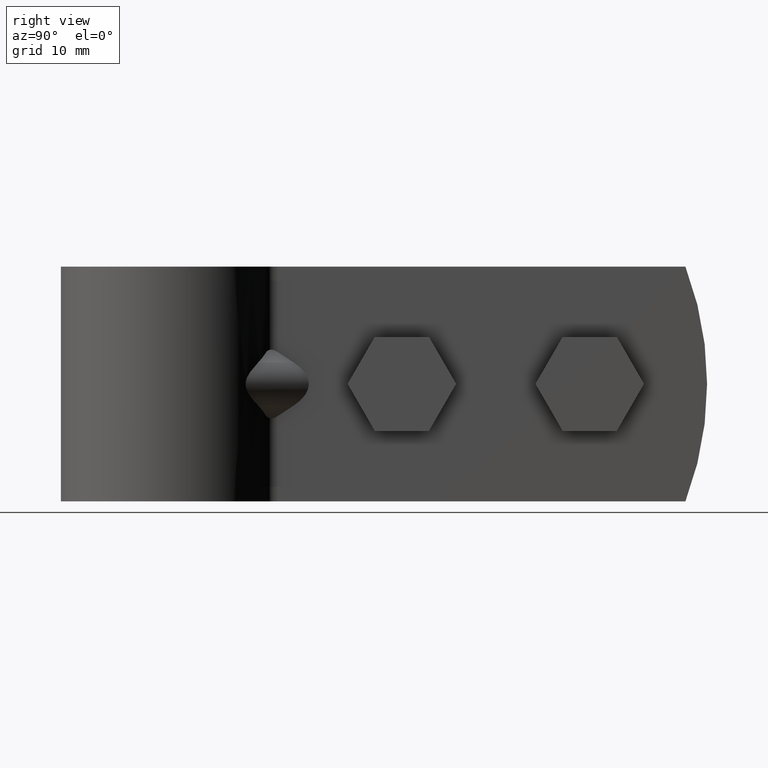
[diagram: clean part render]
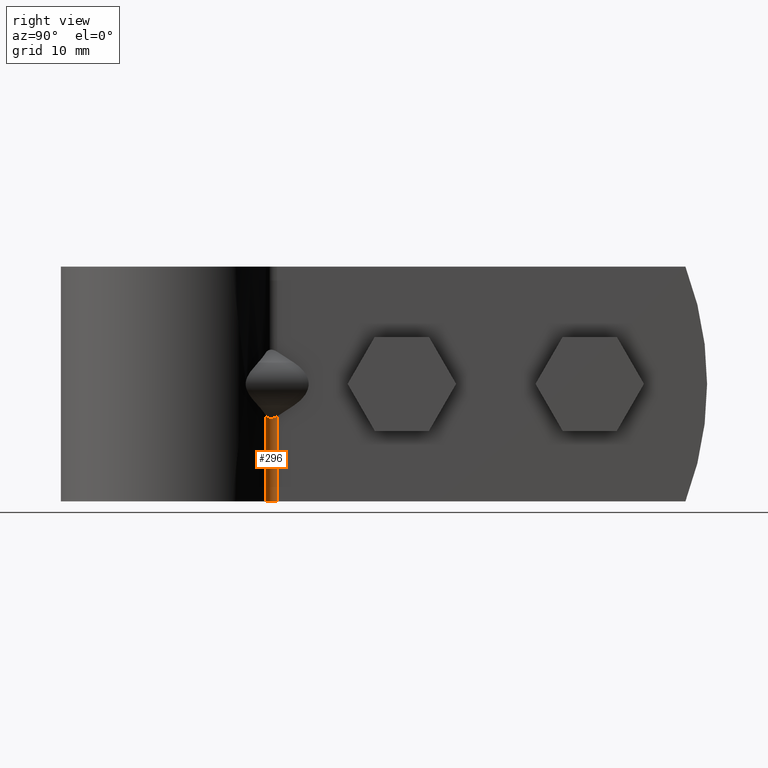
[diagram: same view with one face highlighted and labeled with its STEP entity id]
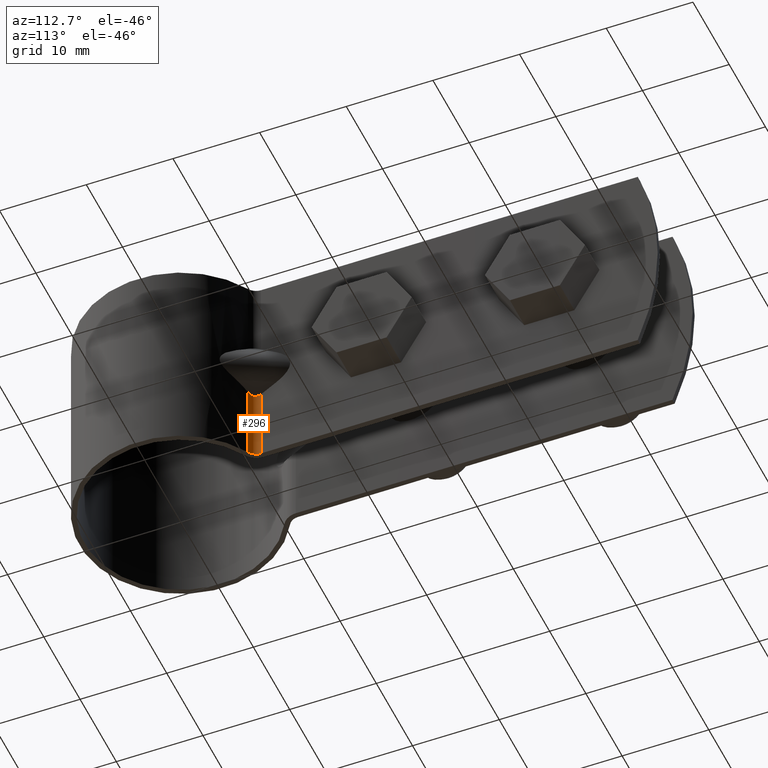
[diagram: same view with one face highlighted and labeled with its STEP entity id]
A machine part, right view. The second image highlights one B-rep face of the part: STEP entity #296.
A second angle (auxiliary view) of the same face is appended — the face is thin or edge-on in the first view.
In plain terms, the highlighted cylindrical surface (edge-blend (fillet) strip) has radius 1.4 mm, axis along (0, 0, -1).
Its self-contained STEP definition (entity closure, byte-faithful):
#296 = ADVANCED_FACE( '', ( #440 ), #441, .F. );
#440 = FACE_OUTER_BOUND( '', #672, .T. );
#441 = CYLINDRICAL_SURFACE( '', #673, 1.40000000000000 );
#672 = EDGE_LOOP( '', ( #1077, #1078, #1079, #1080 ) );
#673 = AXIS2_PLACEMENT_3D( '', #1081, #1082, #1083 );
#1077 = ORIENTED_EDGE( '', *, *, #1705, .F. );
#1078 = ORIENTED_EDGE( '', *, *, #1642, .F. );
#1079 = ORIENTED_EDGE( '', *, *, #1622, .T. );
#1080 = ORIENTED_EDGE( '', *, *, #1692, .T. );
#1081 = CARTESIAN_POINT( '', ( 6.50000000000000, 11.3851701787896, -12.5000000000000 ) );
#1082 = DIRECTION( '', ( 0.000000000000000, 0.000000000000000, -1.00000000000000 ) );
#1083 = DIRECTION( '', ( -1.00000000000000, 6.06692130572647E-017, 0.000000000000000 ) );
#1622 = EDGE_CURVE( '', #1867, #1865, #1868, .F. );
#1642 = EDGE_CURVE( '', #1867, #1904, #1905, .T. );
#1692 = EDGE_CURVE( '', #1865, #1988, #1990, .T. );
#1705 = EDGE_CURVE( '', #1904, #1988, #2007, .T. );
#1865 = VERTEX_POINT( '', #2268 );
#1867 = VERTEX_POINT( '', #2271 );
#1868 = CIRCLE( '', #2272, 1.40000000000000 );
#1904 = VERTEX_POINT( '', #2337 );
#1905 = LINE( '', #2338, #2339 );
#1988 = VERTEX_POINT( '', #2504 );
#1990 = LINE( '', #2507, #2508 );
#2007 = ELLIPSE( '', #2534, 2.44082551386954, 1.40000000000000 );
#2268 = CARTESIAN_POINT( '', ( 5.10000000000000, 11.3851701787896, -12.5000000000000 ) );
#2271 = CARTESIAN_POINT( '', ( 5.80587337909993, 10.1693625319318, -12.5000000000000 ) );
#2272 = AXIS2_PLACEMENT_3D( '', #2984, #2985, #2986 );
#2337 = CARTESIAN_POINT( '', ( 5.80587337909993, 10.1693625319318, -3.32934978562008 ) );
#2338 = CARTESIAN_POINT( '', ( 5.80587337909993, 10.1693625319318, -12.5000000000000 ) );
#2339 = VECTOR( '', #3025, 1000.00000000000 );
#2504 = CARTESIAN_POINT( '', ( 5.10000000000000, 11.3851701787896, -3.43927814349180 ) );
#2507 = CARTESIAN_POINT( '', ( 5.10000000000000, 11.3851701787896, -12.5000000000000 ) );
#2508 = VECTOR( '', #3124, 1000.00000000000 );
#2534 = AXIS2_PLACEMENT_3D( '', #3143, #3144, #3145 );
#2984 = CARTESIAN_POINT( '', ( 6.50000000000000, 11.3851701787896, -12.5000000000000 ) );
#2985 = DIRECTION( '', ( 0.000000000000000, 0.000000000000000, 1.00000000000000 ) );
#2986 = DIRECTION( '', ( 1.00000000000000, 0.000000000000000, 0.000000000000000 ) );
#3025 = DIRECTION( '', ( 0.000000000000000, 0.000000000000000, 1.00000000000000 ) );
#3124 = DIRECTION( '', ( 0.000000000000000, 0.000000000000000, 1.00000000000000 ) );
#3143 = CARTESIAN_POINT( '', ( 6.50000000000000, 11.3851701787896, -1.65779327537243 ) );
#3144 = DIRECTION( '', ( 0.729869815763730, 0.371887245949432, -0.573576436351046 ) );
#3145 = DIRECTION( '', ( 0.511060346909496, 0.260398252977840, 0.819152044288991 ) );